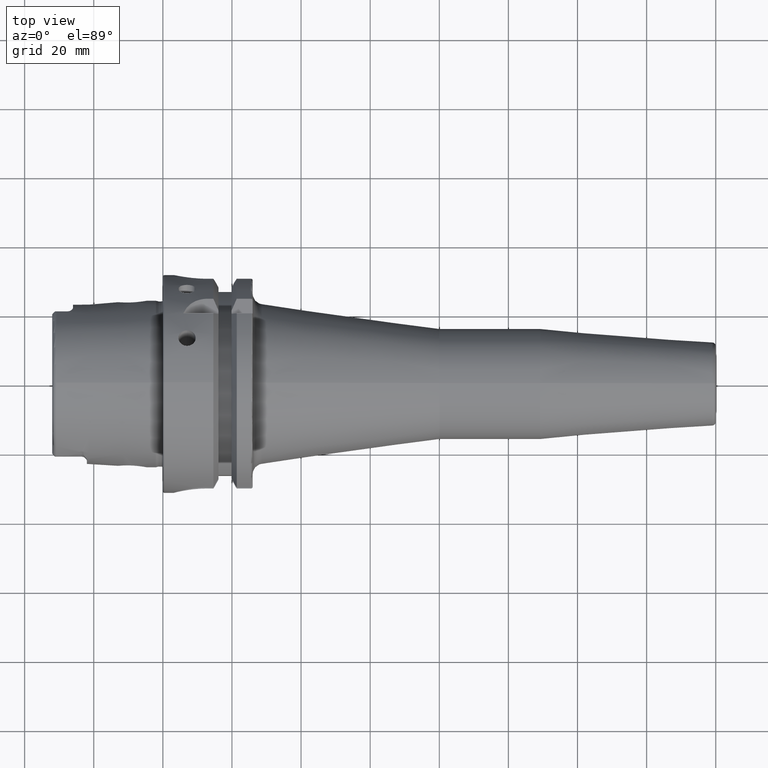
[diagram: clean part render]
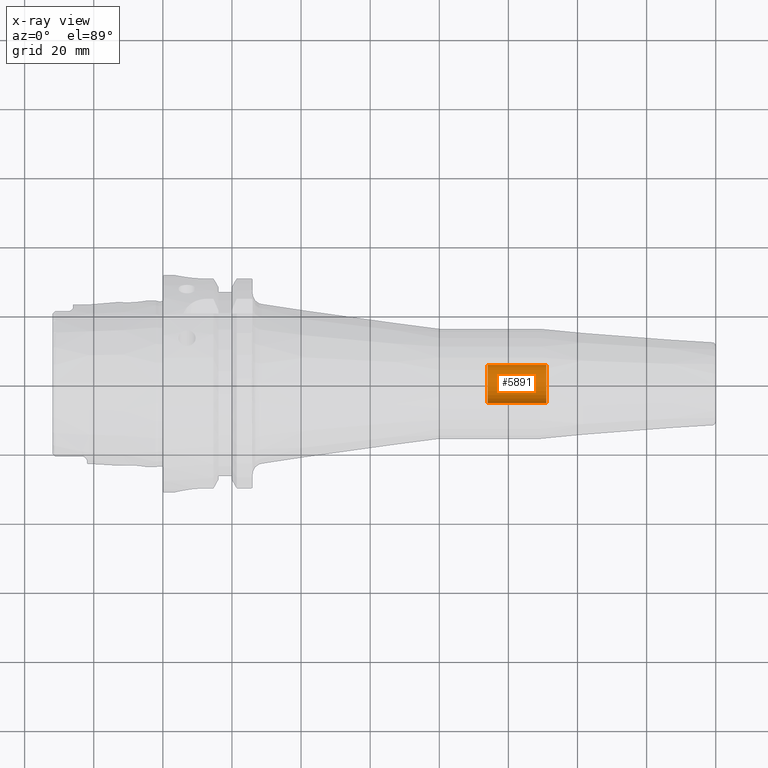
[diagram: x-ray — body ghosted, one internal face saturated and labeled with its STEP entity id]
A machine part, top view, then the same camera in x-ray: the body is ghosted and one INTERNAL B-rep face — a face not visible from any outside direction — is saturated and labeled: STEP entity #5891.
In plain terms, the highlighted cylindrical surface (edge-blend (fillet) strip) has radius 5.5 mm, axis along (1, 0, 0).
Its self-contained STEP definition (entity closure, byte-faithful):
#432=DIRECTION('',(1.E0,0.E0,0.E0));
#433=VECTOR('',#432,1.7E1);
#434=CARTESIAN_POINT('',(9.4E1,5.5E0,0.E0));
#435=LINE('',#434,#433);
#441=DIRECTION('',(1.E0,0.E0,0.E0));
#442=VECTOR('',#441,1.7E1);
#443=CARTESIAN_POINT('',(9.4E1,-5.5E0,0.E0));
#444=LINE('',#443,#442);
#445=CARTESIAN_POINT('',(1.11E2,0.E0,0.E0));
#446=DIRECTION('',(1.E0,0.E0,0.E0));
#447=DIRECTION('',(0.E0,-1.E0,0.E0));
#448=AXIS2_PLACEMENT_3D('',#445,#446,#447);
#2506=CARTESIAN_POINT('',(9.4E1,0.E0,0.E0));
#2507=DIRECTION('',(1.E0,0.E0,0.E0));
#2508=DIRECTION('',(0.E0,-1.E0,0.E0));
#2509=AXIS2_PLACEMENT_3D('',#2506,#2507,#2508);
#3014=CARTESIAN_POINT('',(9.4E1,-5.5E0,0.E0));
#3015=CARTESIAN_POINT('',(9.4E1,5.5E0,0.E0));
#3016=VERTEX_POINT('',#3014);
#3017=VERTEX_POINT('',#3015);
#3018=CARTESIAN_POINT('',(1.11E2,-5.5E0,0.E0));
#3019=CARTESIAN_POINT('',(1.11E2,5.5E0,0.E0));
#3020=VERTEX_POINT('',#3018);
#3021=VERTEX_POINT('',#3019);
#5880=CARTESIAN_POINT('',(8.968002992512E1,0.E0,0.E0));
#5881=DIRECTION('',(1.E0,0.E0,0.E0));
#5882=DIRECTION('',(0.E0,-1.E0,0.E0));
#5883=AXIS2_PLACEMENT_3D('',#5880,#5881,#5882);
#5884=CYLINDRICAL_SURFACE('',#5883,5.5E0);
#5885=ORIENTED_EDGE('',*,*,#3478,.F.);
#5886=ORIENTED_EDGE('',*,*,#3462,.F.);
#5887=ORIENTED_EDGE('',*,*,#3419,.T.);
#5888=ORIENTED_EDGE('',*,*,#3459,.T.);
#5889=EDGE_LOOP('',(#5885,#5886,#5887,#5888));
#5890=FACE_OUTER_BOUND('',#5889,.F.);
#5891=ADVANCED_FACE('',(#5890),#5884,.F.);
#449=CIRCLE('',#448,5.5E0);
#2510=CIRCLE('',#2509,5.5E0);
#3419=EDGE_CURVE('',#3016,#3017,#2510,.T.);
#3459=EDGE_CURVE('',#3017,#3021,#435,.T.);
#3462=EDGE_CURVE('',#3016,#3020,#444,.T.);
#3478=EDGE_CURVE('',#3020,#3021,#449,.T.);